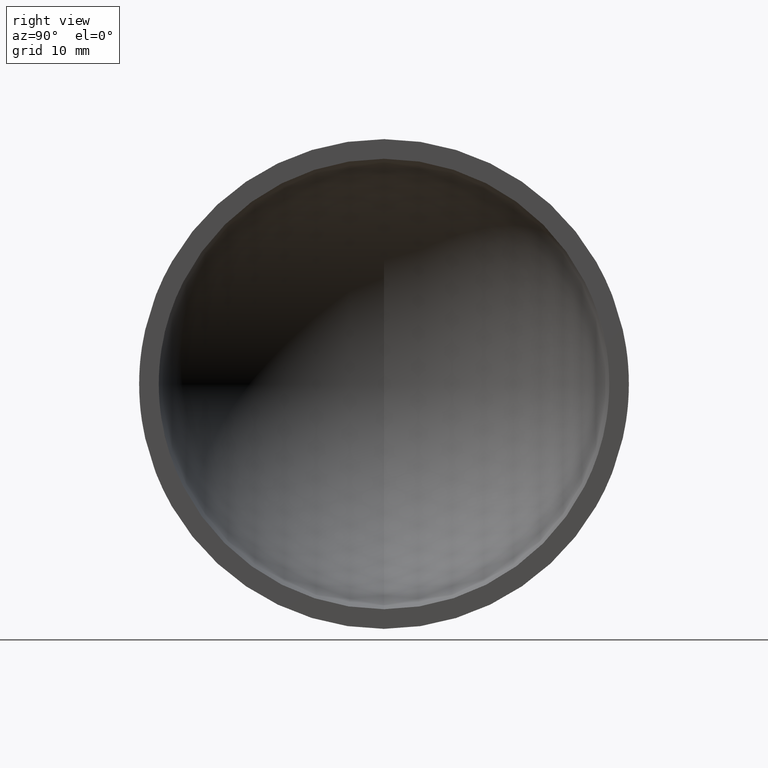
[diagram: clean part render]
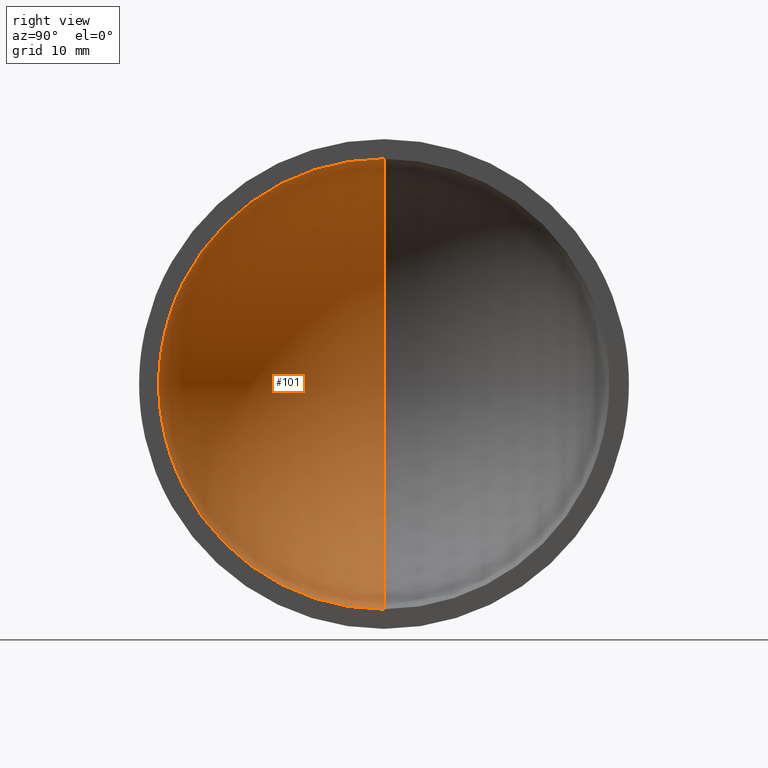
[diagram: same view with one face highlighted and labeled with its STEP entity id]
A machine part, right view. The second image highlights one B-rep face of the part: STEP entity #101.
In plain terms, the highlighted spherical surface has radius 23 mm.
Its self-contained STEP definition (entity closure, byte-faithful):
#2 = EDGE_CURVE ( 'NONE', #117, #77, #138, .T. ) ;
#3 = EDGE_CURVE ( 'NONE', #117, #14, #16, .T. ) ;
#8 = DIRECTION ( 'NONE',  ( 0.0000000000000000000, 0.0000000000000000000, 1.000000000000000000 ) ) ;
#13 = AXIS2_PLACEMENT_3D ( 'NONE', #167, #47, #51 ) ;
#14 = VERTEX_POINT ( 'NONE', #49 ) ;
#16 = CIRCLE ( 'NONE', #141, 23.00000000000000000 ) ;
#19 = DIRECTION ( 'NONE',  ( 0.0000000000000000000, -1.000000000000000000, 1.224646799147353200E-016 ) ) ;
#22 = EDGE_CURVE ( 'NONE', #77, #14, #169, .T. ) ;
#27 = EDGE_LOOP ( 'NONE', ( #63, #151, #145 ) ) ;
#42 = CARTESIAN_POINT ( 'NONE',  ( 0.0000000000000000000, 0.0000000000000000000, 0.0000000000000000000 ) ) ;
#43 = CARTESIAN_POINT ( 'NONE',  ( -0.9999999999999958900, 0.0000000000000000000, 22.97825058615211400 ) ) ;
#47 = DIRECTION ( 'NONE',  ( 0.0000000000000000000, 1.000000000000000000, 0.0000000000000000000 ) ) ;
#49 = CARTESIAN_POINT ( 'NONE',  ( -0.9999999999999958900, -2.814024103033697900E-015, -22.97825058615211400 ) ) ;
#51 = DIRECTION ( 'NONE',  ( 0.0000000000000000000, 0.0000000000000000000, 1.000000000000000000 ) ) ;
#54 = AXIS2_PLACEMENT_3D ( 'NONE', #143, #64, #132 ) ;
#63 = ORIENTED_EDGE ( 'NONE', *, *, #3, .F. ) ;
#64 = DIRECTION ( 'NONE',  ( 1.000000000000000000, -0.0000000000000000000, -0.0000000000000000000 ) ) ;
#77 = VERTEX_POINT ( 'NONE', #43 ) ;
#94 = SPHERICAL_SURFACE ( 'NONE', #152, 23.00000000000000000 ) ;
#97 = FACE_OUTER_BOUND ( 'NONE', #27, .T. ) ;
#101 = ADVANCED_FACE ( 'NONE', ( #97 ), #94, .F. ) ;
#107 = CARTESIAN_POINT ( 'NONE',  ( -23.00000000000000000, 0.0000000000000000000, 1.408343819019456200E-015 ) ) ;
#117 = VERTEX_POINT ( 'NONE', #107 ) ;
#119 = CARTESIAN_POINT ( 'NONE',  ( 0.0000000000000000000, 0.0000000000000000000, 0.0000000000000000000 ) ) ;
#129 = DIRECTION ( 'NONE',  ( 0.0000000000000000000, -1.000000000000000000, 0.0000000000000000000 ) ) ;
#132 = DIRECTION ( 'NONE',  ( 0.0000000000000000000, 0.0000000000000000000, -1.000000000000000000 ) ) ;
#138 = CIRCLE ( 'NONE', #13, 23.00000000000000000 ) ;
#141 = AXIS2_PLACEMENT_3D ( 'NONE', #119, #19, #153 ) ;
#143 = CARTESIAN_POINT ( 'NONE',  ( -0.9999999999999958900, 0.0000000000000000000, 0.0000000000000000000 ) ) ;
#145 = ORIENTED_EDGE ( 'NONE', *, *, #22, .T. ) ;
#151 = ORIENTED_EDGE ( 'NONE', *, *, #2, .T. ) ;
#152 = AXIS2_PLACEMENT_3D ( 'NONE', #42, #129, #8 ) ;
#153 = DIRECTION ( 'NONE',  ( 0.0000000000000000000, -1.224646799147353200E-016, -1.000000000000000000 ) ) ;
#167 = CARTESIAN_POINT ( 'NONE',  ( 0.0000000000000000000, 0.0000000000000000000, 0.0000000000000000000 ) ) ;
#169 = CIRCLE ( 'NONE', #54, 22.97825058615211400 ) ;